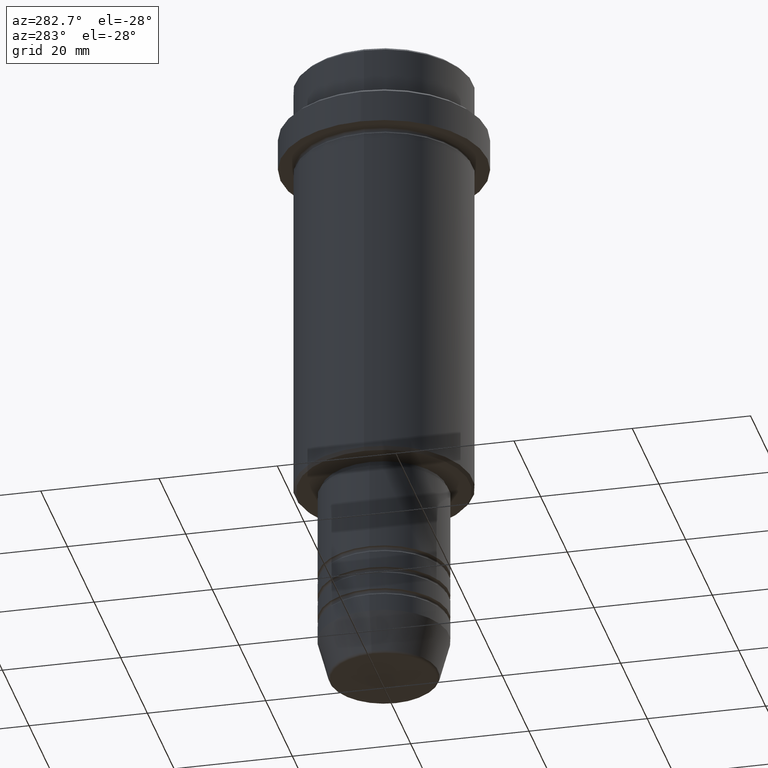
[diagram: clean part render]
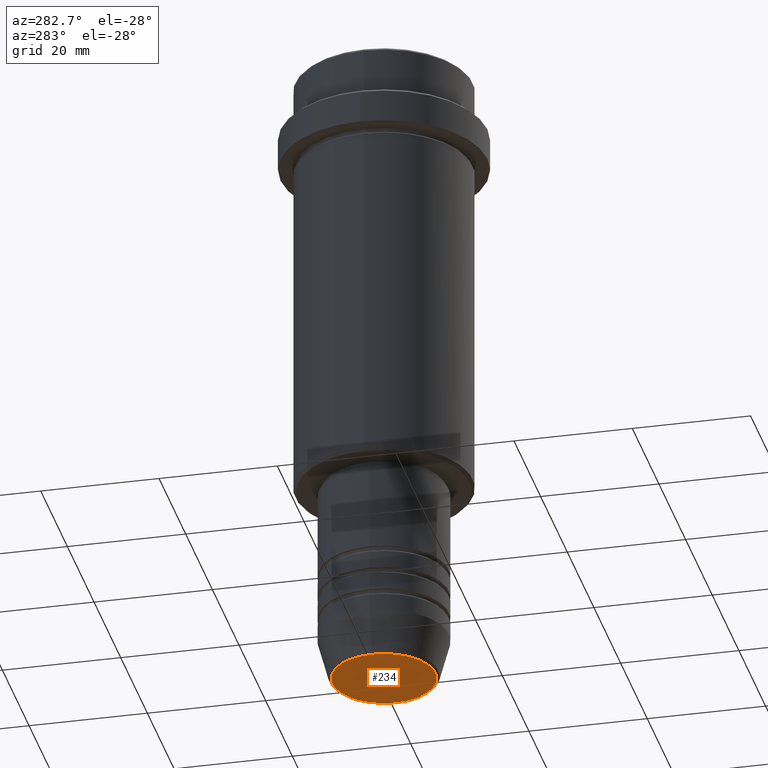
[diagram: same view with one face highlighted and labeled with its STEP entity id]
A machine part, auxiliary view. The second image highlights one B-rep face of the part: STEP entity #234.
In plain terms, the highlighted planar face has unit normal (0, -0, 1).
Its self-contained STEP definition (entity closure, byte-faithful):
#167 = ORIENTED_EDGE ( 'NONE', *, *, #483, .T. ) ;
#234 = ADVANCED_FACE ( 'NONE', ( #1383 ), #1258, .F. ) ;
#296 = DIRECTION ( 'NONE',  ( 1.000000000000000000, 0.000000000000000000, 0.000000000000000000 ) ) ;
#310 = AXIS2_PLACEMENT_3D ( 'NONE', #881, #1296, #325 ) ;
#325 = DIRECTION ( 'NONE',  ( 1.000000000000000000, 0.000000000000000000, 0.000000000000000000 ) ) ;
#349 = DIRECTION ( 'NONE',  ( 1.000000000000000000, 0.000000000000000000, 0.000000000000000000 ) ) ;
#405 = EDGE_CURVE ( 'NONE', #1109, #822, #472, .T. ) ;
#472 = CIRCLE ( 'NONE', #1048, 8.740692158992652949 ) ;
#483 = EDGE_CURVE ( 'NONE', #822, #1109, #942, .T. ) ;
#539 = CARTESIAN_POINT ( 'NONE',  ( 0.000000000000000000, 0.000000000000000000, -110.0000000000000142 ) ) ;
#555 = DIRECTION ( 'NONE',  ( 0.000000000000000000, 0.000000000000000000, -1.000000000000000000 ) ) ;
#643 = CARTESIAN_POINT ( 'NONE',  ( 0.000000000000000000, 0.000000000000000000, -110.0000000000000142 ) ) ;
#731 = DIRECTION ( 'NONE',  ( 0.000000000000000000, -0.000000000000000000, 1.000000000000000000 ) ) ;
#822 = VERTEX_POINT ( 'NONE', #1287 ) ;
#881 = CARTESIAN_POINT ( 'NONE',  ( 0.000000000000000000, 0.000000000000000000, -110.0000000000000142 ) ) ;
#942 = CIRCLE ( 'NONE', #310, 8.740692158992652949 ) ;
#987 = AXIS2_PLACEMENT_3D ( 'NONE', #643, #731, #296 ) ;
#1048 = AXIS2_PLACEMENT_3D ( 'NONE', #539, #555, #349 ) ;
#1051 = EDGE_LOOP ( 'NONE', ( #1239, #167 ) ) ;
#1109 = VERTEX_POINT ( 'NONE', #1345 ) ;
#1239 = ORIENTED_EDGE ( 'NONE', *, *, #405, .T. ) ;
#1258 = PLANE ( 'NONE',  #987 ) ;
#1287 = CARTESIAN_POINT ( 'NONE',  ( -8.740692158992652949, 1.099999016768739259E-15, -110.0000000000000142 ) ) ;
#1296 = DIRECTION ( 'NONE',  ( 0.000000000000000000, 0.000000000000000000, -1.000000000000000000 ) ) ;
#1345 = CARTESIAN_POINT ( 'NONE',  ( 8.740692158992652949, 0.000000000000000000, -110.0000000000000142 ) ) ;
#1383 = FACE_OUTER_BOUND ( 'NONE', #1051, .T. ) ;